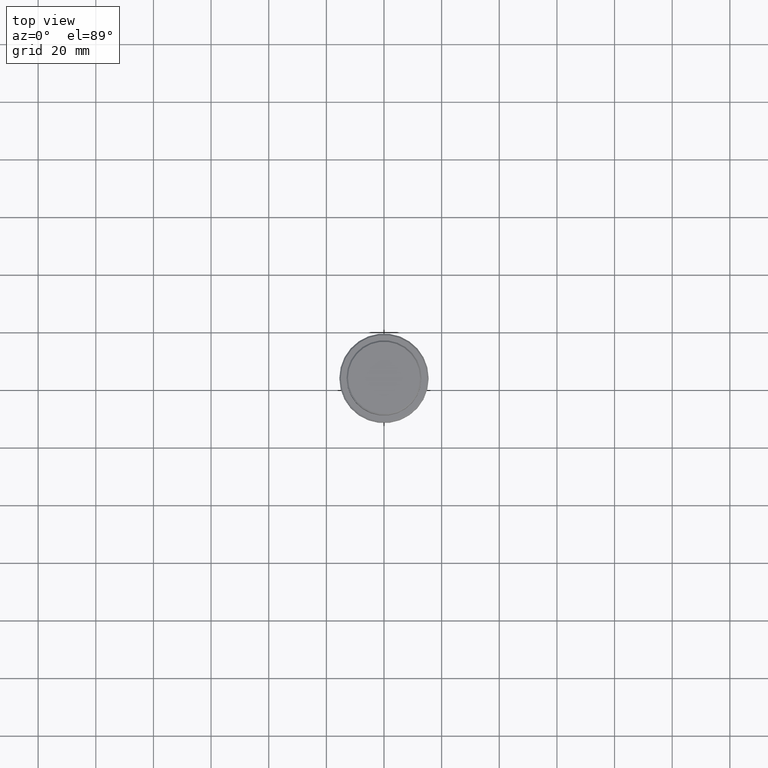
[diagram: clean part render]
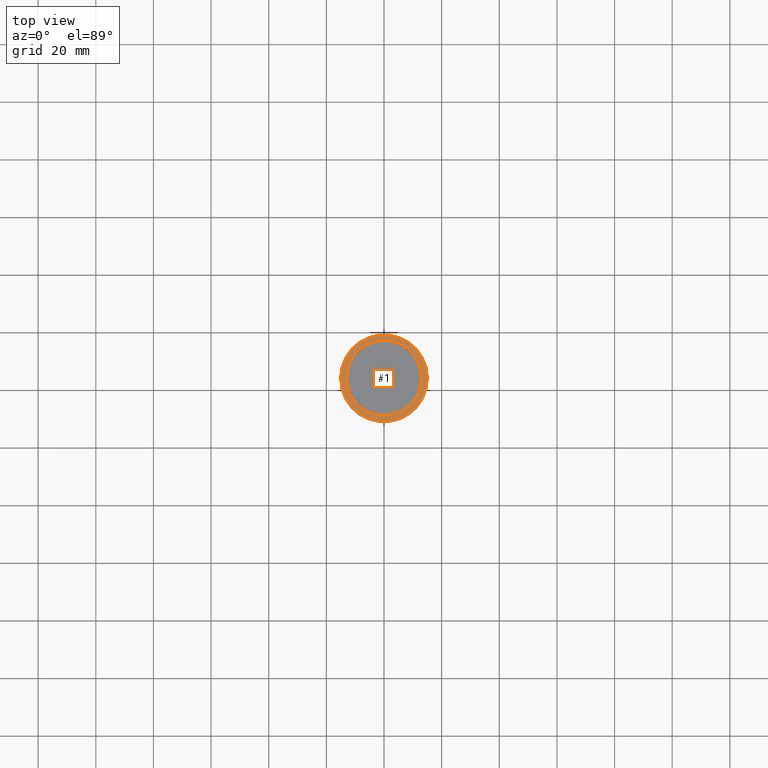
[diagram: same view with one face highlighted and labeled with its STEP entity id]
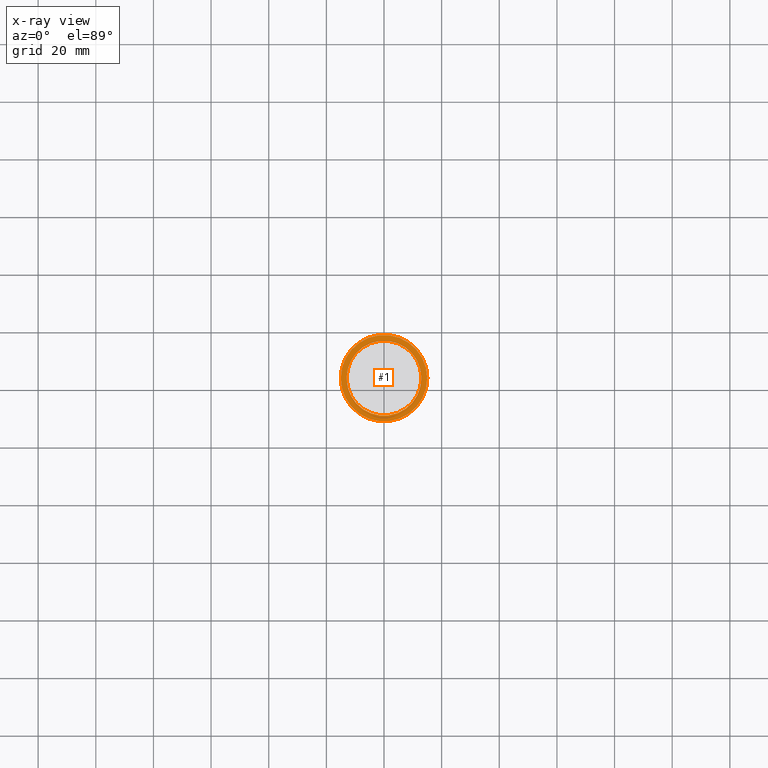
[diagram: x-ray of the same camera — body ghosted, the highlighted face saturated]
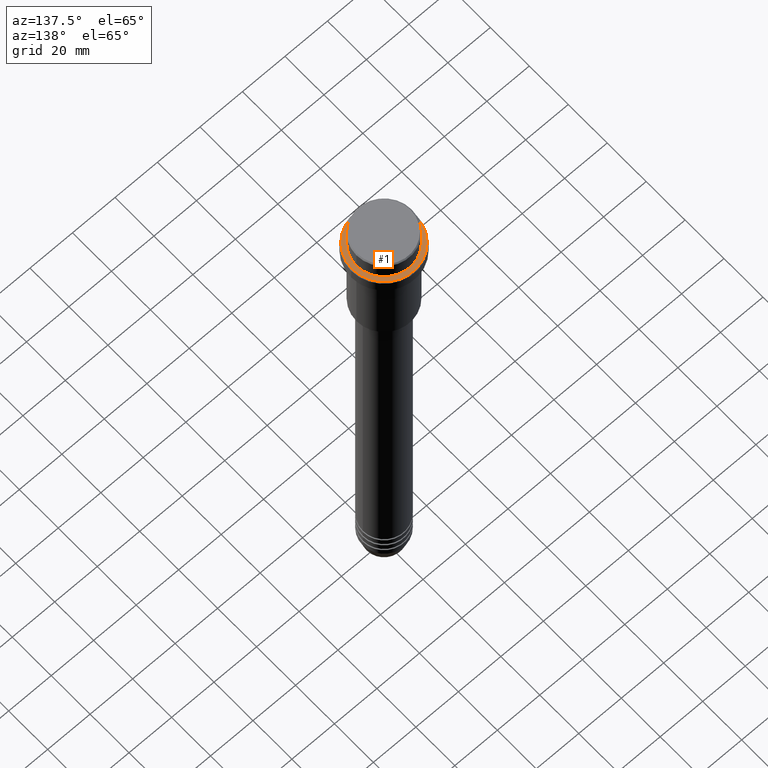
[diagram: same view with one face highlighted and labeled with its STEP entity id]
A machine part, top view. The second image highlights one B-rep face of the part: STEP entity #1.
The next image is the same camera in x-ray: the body ghosted, the highlighted face saturated — about 0% of this face is hidden behind the body in this view.
A second angle (auxiliary view) of the same face is appended — the face is thin or edge-on in the first view.
In plain terms, the highlighted planar face has unit normal (0, -0, 1).
Its self-contained STEP definition (entity closure, byte-faithful):
#1 = ADVANCED_FACE ( 'NONE', ( #195, #540 ), #982, .T. ) ;
#56 = EDGE_LOOP ( 'NONE', ( #1100, #581 ) ) ;
#82 = CARTESIAN_POINT ( 'NONE',  ( 0.000000000000000000, 0.000000000000000000, -9.000000000000001776 ) ) ;
#122 = EDGE_CURVE ( 'NONE', #332, #157, #1015, .T. ) ;
#150 = CIRCLE ( 'NONE', #509, 15.00000000000004086 ) ;
#157 = VERTEX_POINT ( 'NONE', #760 ) ;
#195 = FACE_OUTER_BOUND ( 'NONE', #56, .T. ) ;
#203 = CARTESIAN_POINT ( 'NONE',  ( 0.000000000000000000, 0.000000000000000000, -9.000000000000001776 ) ) ;
#212 = AXIS2_PLACEMENT_3D ( 'NONE', #82, #953, #857 ) ;
#332 = VERTEX_POINT ( 'NONE', #1351 ) ;
#509 = AXIS2_PLACEMENT_3D ( 'NONE', #1071, #817, #704 ) ;
#540 = FACE_BOUND ( 'NONE', #1038, .T. ) ;
#550 = ORIENTED_EDGE ( 'NONE', *, *, #1288, .T. ) ;
#558 = CIRCLE ( 'NONE', #763, 12.99999999999999467 ) ;
#574 = DIRECTION ( 'NONE',  ( 1.000000000000000000, 0.000000000000000000, 0.000000000000000000 ) ) ;
#581 = ORIENTED_EDGE ( 'NONE', *, *, #936, .T. ) ;
#587 = CARTESIAN_POINT ( 'NONE',  ( 15.00000000000004086, 1.867586368699716531E-15, -9.000000000000001776 ) ) ;
#603 = ORIENTED_EDGE ( 'NONE', *, *, #122, .T. ) ;
#632 = DIRECTION ( 'NONE',  ( 1.000000000000000000, 0.000000000000000000, 0.000000000000000000 ) ) ;
#704 = DIRECTION ( 'NONE',  ( 1.000000000000000000, 0.000000000000000000, 0.000000000000000000 ) ) ;
#760 = CARTESIAN_POINT ( 'NONE',  ( -12.99999999999999467, 1.592040838891558504E-15, -9.000000000000001776 ) ) ;
#762 = DIRECTION ( 'NONE',  ( 1.000000000000000000, 0.000000000000000000, 0.000000000000000000 ) ) ;
#763 = AXIS2_PLACEMENT_3D ( 'NONE', #1052, #1235, #574 ) ;
#817 = DIRECTION ( 'NONE',  ( -0.000000000000000000, -0.000000000000000000, 1.000000000000000000 ) ) ;
#845 = VERTEX_POINT ( 'NONE', #587 ) ;
#857 = DIRECTION ( 'NONE',  ( 1.000000000000000000, 0.000000000000000000, 0.000000000000000000 ) ) ;
#873 = DIRECTION ( 'NONE',  ( 0.000000000000000000, -0.000000000000000000, 1.000000000000000000 ) ) ;
#936 = EDGE_CURVE ( 'NONE', #845, #1254, #150, .T. ) ;
#953 = DIRECTION ( 'NONE',  ( 0.000000000000000000, 0.000000000000000000, -1.000000000000000000 ) ) ;
#982 = PLANE ( 'NONE',  #994 ) ;
#994 = AXIS2_PLACEMENT_3D ( 'NONE', #1416, #873, #632 ) ;
#1012 = CARTESIAN_POINT ( 'NONE',  ( -15.00000000000004086, 0.000000000000000000, -9.000000000000001776 ) ) ;
#1015 = CIRCLE ( 'NONE', #212, 12.99999999999999467 ) ;
#1038 = EDGE_LOOP ( 'NONE', ( #603, #550 ) ) ;
#1052 = CARTESIAN_POINT ( 'NONE',  ( 0.000000000000000000, 0.000000000000000000, -9.000000000000001776 ) ) ;
#1071 = CARTESIAN_POINT ( 'NONE',  ( 0.000000000000000000, 0.000000000000000000, -9.000000000000001776 ) ) ;
#1082 = DIRECTION ( 'NONE',  ( -0.000000000000000000, -0.000000000000000000, 1.000000000000000000 ) ) ;
#1090 = EDGE_CURVE ( 'NONE', #1254, #845, #1294, .T. ) ;
#1100 = ORIENTED_EDGE ( 'NONE', *, *, #1090, .T. ) ;
#1235 = DIRECTION ( 'NONE',  ( 0.000000000000000000, 0.000000000000000000, -1.000000000000000000 ) ) ;
#1254 = VERTEX_POINT ( 'NONE', #1012 ) ;
#1288 = EDGE_CURVE ( 'NONE', #157, #332, #558, .T. ) ;
#1294 = CIRCLE ( 'NONE', #1318, 15.00000000000004086 ) ;
#1318 = AXIS2_PLACEMENT_3D ( 'NONE', #203, #1082, #762 ) ;
#1351 = CARTESIAN_POINT ( 'NONE',  ( 12.99999999999999467, 0.000000000000000000, -9.000000000000001776 ) ) ;
#1416 = CARTESIAN_POINT ( 'NONE',  ( 0.000000000000000000, 12.49999999999999289, -9.000000000000001776 ) ) ;